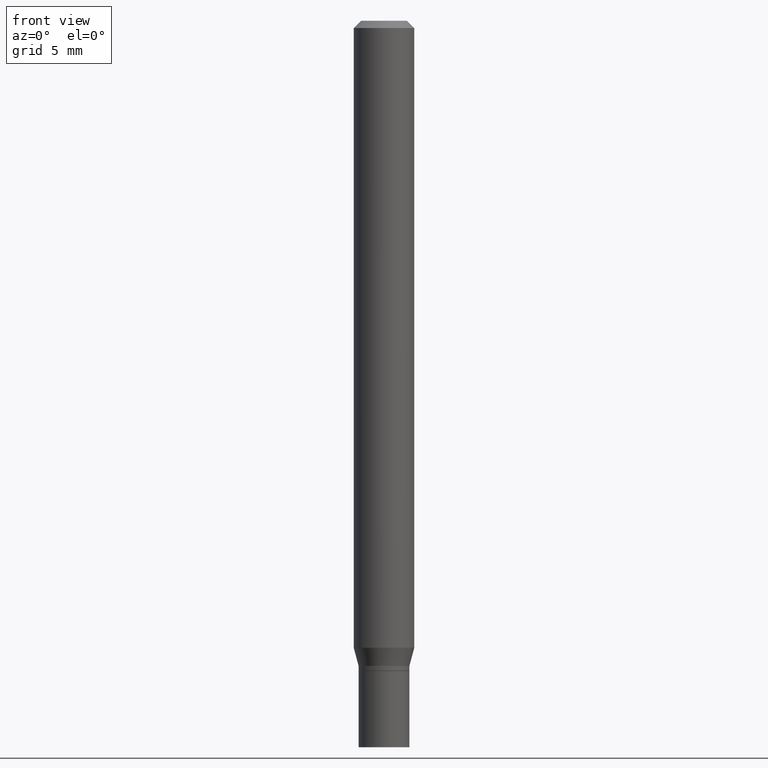
[diagram: clean part render]
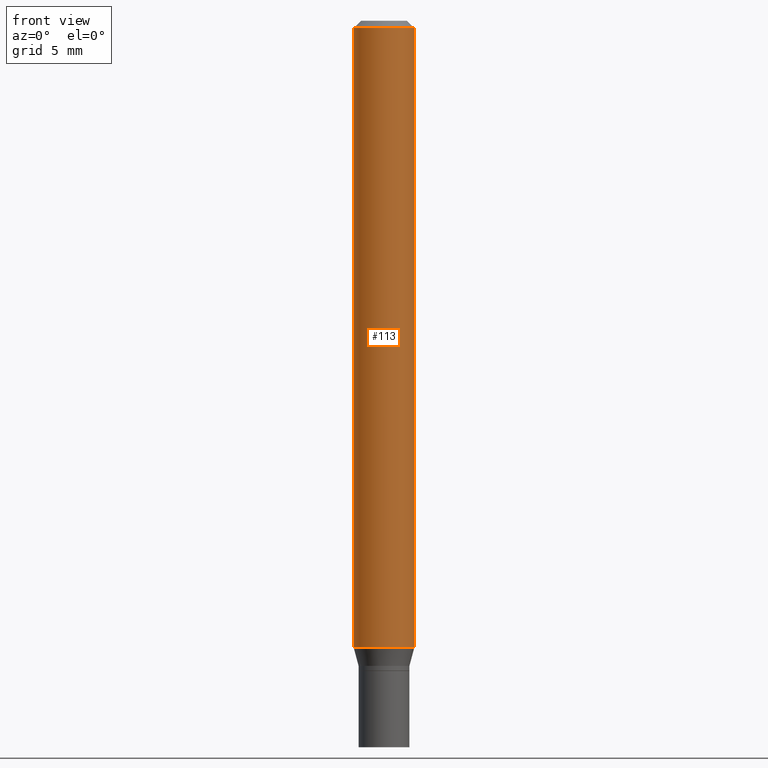
[diagram: same view with one face highlighted and labeled with its STEP entity id]
A machine part, front view. The second image highlights one B-rep face of the part: STEP entity #113.
In plain terms, the highlighted cylindrical surface (edge-blend (fillet) strip) has radius 1.5875 mm, axis along (-0, 0, 1).
Its self-contained STEP definition (entity closure, byte-faithful):
#6 = CARTESIAN_POINT ( 'NONE',  ( 0.06250000000000000000, -4.956784453192048385E-15, -1.294679491924311199 ) ) ;
#19 = DIRECTION ( 'NONE',  ( -2.445468806185136877E-29, 3.491481338843145188E-15, 1.000000000000000000 ) ) ;
#30 = DIRECTION ( 'NONE',  ( -2.445468806185136877E-29, 3.491481338843145188E-15, 1.000000000000000000 ) ) ;
#36 = CARTESIAN_POINT ( 'NONE',  ( 0.000000000000000000, 0.000000000000000000, 0.000000000000000000 ) ) ;
#46 = EDGE_CURVE ( 'NONE', #296, #235, #351, .T. ) ;
#59 = CARTESIAN_POINT ( 'NONE',  ( 0.06250000000000000000, -4.888073874380388472E-16, -0.01499999999999999944 ) ) ;
#90 = ORIENTED_EDGE ( 'NONE', *, *, #408, .F. ) ;
#102 = CARTESIAN_POINT ( 'NONE',  ( -0.06250000000000000000, -1.842271543109589873E-15, -0.01499999999999999944 ) ) ;
#111 = CARTESIAN_POINT ( 'NONE',  ( -0.06250000000000000000, 4.440892098500626162E-16, -3.074334431409316114E-30 ) ) ;
#113 = ADVANCED_FACE ( 'NONE', ( #357 ), #400, .T. ) ;
#136 = LINE ( 'NONE', #342, #367 ) ;
#148 = CARTESIAN_POINT ( 'NONE',  ( 3.166098311508524347E-29, -4.520349285836657505E-15, -1.294679491924311199 ) ) ;
#153 = VERTEX_POINT ( 'NONE', #59 ) ;
#157 = CIRCLE ( 'NONE', #437, 0.06250000000000000000 ) ;
#181 = DIRECTION ( 'NONE',  ( -2.445468806185136597E-29, 3.491481338843145583E-15, 1.000000000000000000 ) ) ;
#226 = AXIS2_PLACEMENT_3D ( 'NONE', #148, #181, #317 ) ;
#235 = VERTEX_POINT ( 'NONE', #6 ) ;
#268 = EDGE_LOOP ( 'NONE', ( #393, #428, #444, #90 ) ) ;
#270 = VECTOR ( 'NONE', #30, 39.37007874015748143 ) ;
#285 = DIRECTION ( 'NONE',  ( 1.000000000000000000, -6.982962677686266711E-15, 4.876176775795935793E-29 ) ) ;
#296 = VERTEX_POINT ( 'NONE', #307 ) ;
#307 = CARTESIAN_POINT ( 'NONE',  ( -0.06250000000000000000, -4.076260075986594889E-15, -1.294679491924311199 ) ) ;
#317 = DIRECTION ( 'NONE',  ( 1.000000000000000000, -6.982962677686262766E-15, 0.000000000000000000 ) ) ;
#328 = DIRECTION ( 'NONE',  ( -2.445468806185136597E-29, 3.491481338843145583E-15, 1.000000000000000000 ) ) ;
#342 = CARTESIAN_POINT ( 'NONE',  ( 0.06250000000000000000, -4.364351673553916694E-16, 3.047610484872459871E-30 ) ) ;
#351 = CIRCLE ( 'NONE', #226, 0.06250000000000000000 ) ;
#353 = CARTESIAN_POINT ( 'NONE',  ( 3.668203209277705088E-31, -5.237222008264718399E-17, -0.01499999999999999944 ) ) ;
#357 = FACE_OUTER_BOUND ( 'NONE', #268, .T. ) ;
#367 = VECTOR ( 'NONE', #19, 39.37007874015748143 ) ;
#378 = AXIS2_PLACEMENT_3D ( 'NONE', #36, #328, #285 ) ;
#379 = EDGE_CURVE ( 'NONE', #235, #153, #136, .T. ) ;
#389 = DIRECTION ( 'NONE',  ( 1.000000000000000000, -6.982962677686266711E-15, 0.000000000000000000 ) ) ;
#392 = LINE ( 'NONE', #111, #270 ) ;
#393 = ORIENTED_EDGE ( 'NONE', *, *, #435, .F. ) ;
#400 = CYLINDRICAL_SURFACE ( 'NONE', #378, 0.06250000000000000000 ) ;
#408 = EDGE_CURVE ( 'NONE', #412, #153, #157, .T. ) ;
#412 = VERTEX_POINT ( 'NONE', #102 ) ;
#422 = DIRECTION ( 'NONE',  ( -2.445468806185136597E-29, 3.491481338843145583E-15, 1.000000000000000000 ) ) ;
#428 = ORIENTED_EDGE ( 'NONE', *, *, #46, .T. ) ;
#435 = EDGE_CURVE ( 'NONE', #296, #412, #392, .T. ) ;
#437 = AXIS2_PLACEMENT_3D ( 'NONE', #353, #422, #389 ) ;
#444 = ORIENTED_EDGE ( 'NONE', *, *, #379, .T. ) ;